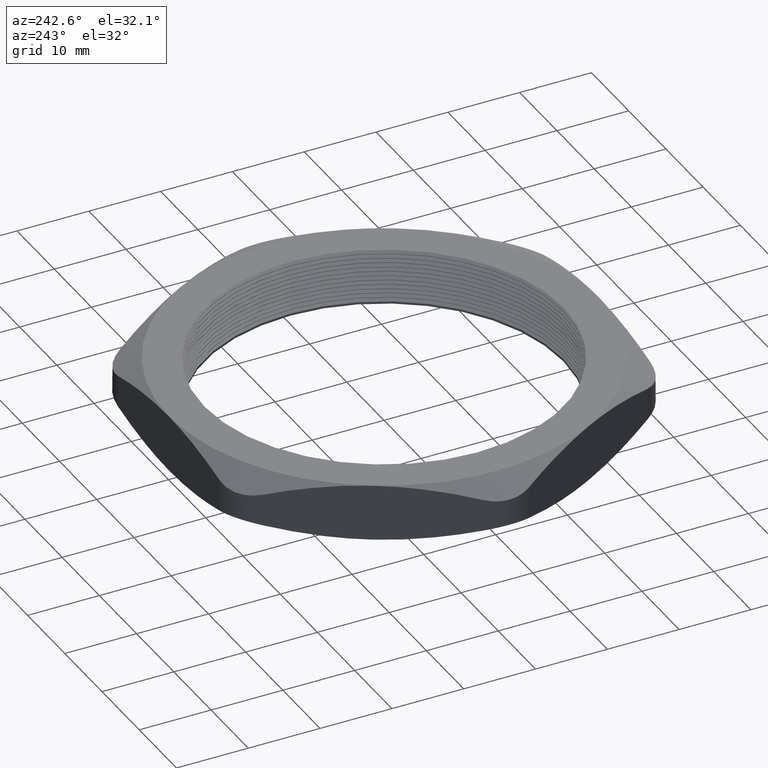
[diagram: clean part render]
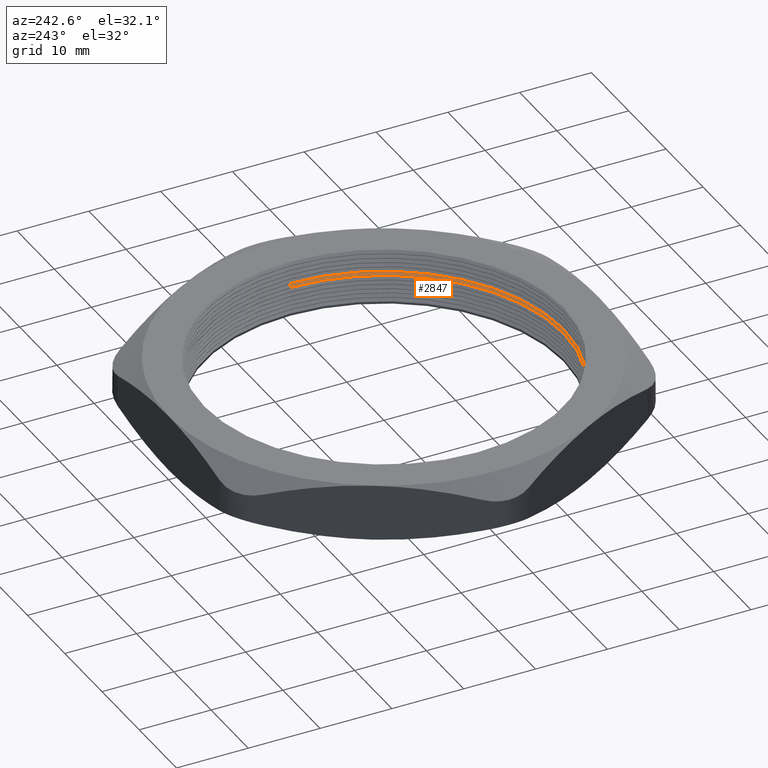
[diagram: same view with one face highlighted and labeled with its STEP entity id]
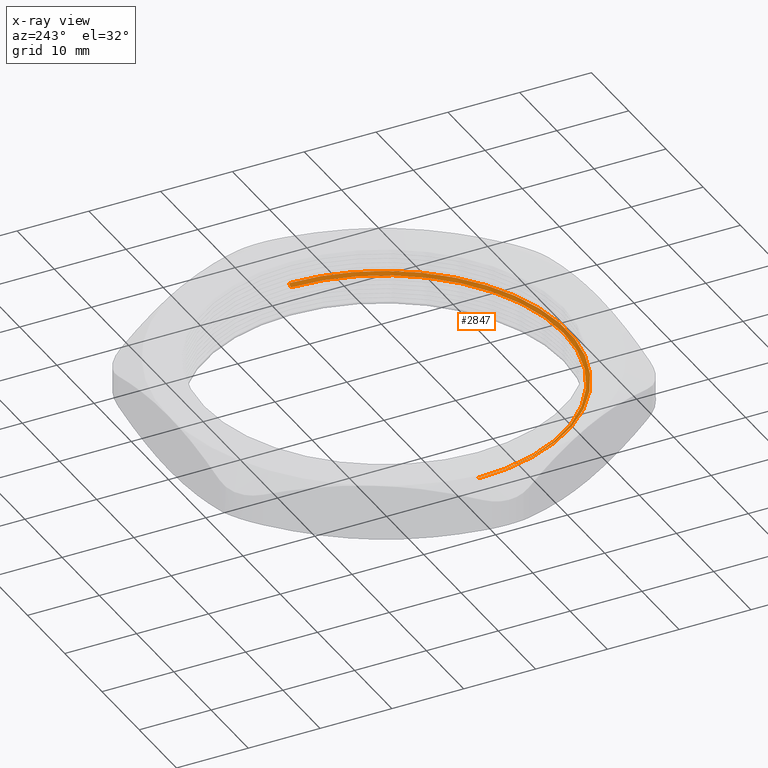
[diagram: x-ray of the same camera — body ghosted, the highlighted face saturated]
A machine part, auxiliary view. The second image highlights one B-rep face of the part: STEP entity #2847.
The next image is the same camera in x-ray: the body ghosted, the highlighted face saturated — about 0% of this face is hidden behind the body in this view.
In plain terms, the highlighted conical surface has half-angle 60 deg.
Its self-contained STEP definition (entity closure, byte-faithful):
#564 = LINE ( 'NONE', #1049, #1293 ) ;
#1049 = CARTESIAN_POINT ( 'NONE',  ( -0.9849999999999999900, 1.206277097160143100E-016, 0.1619059892324149800 ) ) ;
#1293 = VECTOR ( 'NONE', #1300, 39.37007874015748100 ) ;
#1300 = DIRECTION ( 'NONE',  ( -0.8660254037844360400, 1.060575238724903700E-016, 0.5000000000000045500 ) ) ;
#2052 = CARTESIAN_POINT ( 'NONE',  ( 0.9849999999999999900, 1.206277097160143100E-016, 0.1619059892324149800 ) ) ;
#2053 = CARTESIAN_POINT ( 'NONE',  ( -0.9849999999999999900, 0.0000000000000000000, 0.1619059892324149800 ) ) ;
#2054 = CARTESIAN_POINT ( 'NONE',  ( -1.005000000000000100, 0.0000000000000000000, 0.1734529946162077000 ) ) ;
#2056 = CARTESIAN_POINT ( 'NONE',  ( 1.005000000000000100, 1.230770033143090100E-016, 0.1734529946162077000 ) ) ;
#2066 = DIRECTION ( 'NONE',  ( 1.000000000000000000, 0.0000000000000000000, 0.0000000000000000000 ) ) ;
#2067 = DIRECTION ( 'NONE',  ( 0.0000000000000000000, 0.0000000000000000000, 1.000000000000000000 ) ) ;
#2068 = CARTESIAN_POINT ( 'NONE',  ( 0.0000000000000000000, 0.0000000000000000000, 0.1619059892324149800 ) ) ;
#2069 = AXIS2_PLACEMENT_3D ( 'NONE', #2068, #2067, #2066 ) ;
#2070 = CONICAL_SURFACE ( 'NONE', #2069, 0.9849999999999999900, 1.047197551196592500 ) ;
#2071 = FACE_OUTER_BOUND ( 'NONE', #2861, .T. ) ;
#2109 = DIRECTION ( 'NONE',  ( 1.000000000000000000, 0.0000000000000000000, 0.0000000000000000000 ) ) ;
#2110 = DIRECTION ( 'NONE',  ( 0.0000000000000000000, 0.0000000000000000000, 1.000000000000000000 ) ) ;
#2111 = CARTESIAN_POINT ( 'NONE',  ( 0.0000000000000000000, 0.0000000000000000000, 0.1619059892324149800 ) ) ;
#2112 = AXIS2_PLACEMENT_3D ( 'NONE', #2111, #2110, #2109 ) ;
#2113 = CIRCLE ( 'NONE', #2112, 0.9849999999999999900 ) ;
#2124 = DIRECTION ( 'NONE',  ( 1.000000000000000000, 0.0000000000000000000, 0.0000000000000000000 ) ) ;
#2125 = DIRECTION ( 'NONE',  ( 0.0000000000000000000, 0.0000000000000000000, 1.000000000000000000 ) ) ;
#2126 = AXIS2_PLACEMENT_3D ( 'NONE', #2132, #2125, #2124 ) ;
#2127 = CIRCLE ( 'NONE', #2126, 1.005000000000000100 ) ;
#2132 = CARTESIAN_POINT ( 'NONE',  ( 0.0000000000000000000, 0.0000000000000000000, 0.1734529946162077000 ) ) ;
#2135 = DIRECTION ( 'NONE',  ( 0.8660254037844360400, 0.0000000000000000000, 0.5000000000000045500 ) ) ;
#2136 = VECTOR ( 'NONE', #2135, 39.37007874015748100 ) ;
#2137 = CARTESIAN_POINT ( 'NONE',  ( 0.9849999999999999900, 0.0000000000000000000, 0.1619059892324149800 ) ) ;
#2138 = LINE ( 'NONE', #2137, #2136 ) ;
#2847 = ADVANCED_FACE ( 'NONE', ( #2071 ), #2070, .F. ) ;
#2851 = VERTEX_POINT ( 'NONE', #2056 ) ;
#2854 = ORIENTED_EDGE ( 'NONE', *, *, #2884, .T. ) ;
#2855 = VERTEX_POINT ( 'NONE', #2054 ) ;
#2856 = VERTEX_POINT ( 'NONE', #2053 ) ;
#2857 = VERTEX_POINT ( 'NONE', #2052 ) ;
#2858 = EDGE_CURVE ( 'NONE', #2856, #2855, #564, .T. ) ;
#2859 = ORIENTED_EDGE ( 'NONE', *, *, #2858, .T. ) ;
#2861 = EDGE_LOOP ( 'NONE', ( #2863, #2859, #2854, #2879 ) ) ;
#2862 = EDGE_CURVE ( 'NONE', #2856, #2857, #2113, .T. ) ;
#2863 = ORIENTED_EDGE ( 'NONE', *, *, #2862, .F. ) ;
#2879 = ORIENTED_EDGE ( 'NONE', *, *, #2880, .F. ) ;
#2880 = EDGE_CURVE ( 'NONE', #2857, #2851, #2138, .T. ) ;
#2884 = EDGE_CURVE ( 'NONE', #2855, #2851, #2127, .T. ) ;